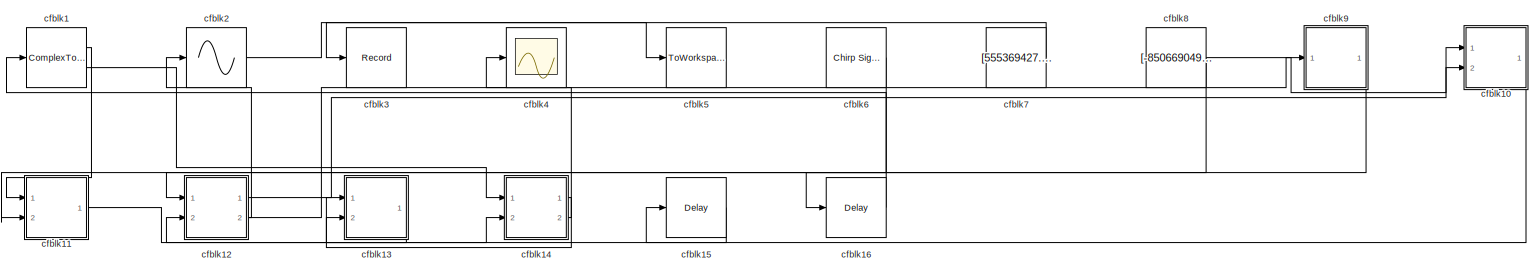
[diagram: root canvas - part 1/1, most of the canvas]
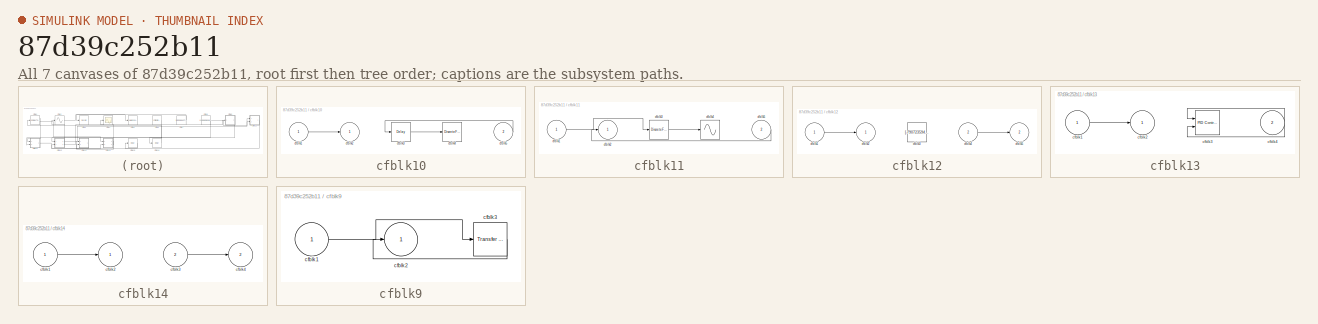
[diagram: thumbnail index - all 7 canvases of the model, root first then tree order]
MODEL slx_87d39c252b11
KIND model
CONFIG AbsTol = auto
CONFIG EnableMultiTasking = off
CONFIG FixedStep = auto
CONFIG MaxStep = auto
CONFIG MinStep = auto
CONFIG RelTol = 1e-3
CONFIG SampleTimeConstraint = Unconstrained
CONFIG SolverName = VariableStepAuto
CONFIG StartTime = 0.0
CONFIG StopTime = 10.0
BLOCK [ComplexToMagnitudeAngle] cfblk1
  Ports = [1, 2]
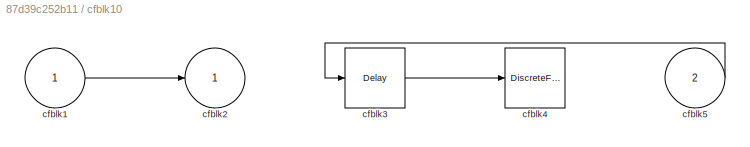
BLOCK [SubSystem] cfblk10
  Ports = [2, 1]
  RequestExecContextInheritance = off
BLOCK [Inport] cfblk10/cfblk1
BLOCK [Outport] cfblk10/cfblk2
BLOCK [Delay] cfblk10/cfblk3
  InputPortMap = u0
  Ports = [1, 1]
  SampleTime = 1
BLOCK [DiscreteFir] cfblk10/cfblk4
  InputPortMap = u0
  OutputPortMap = o0
  Ports = [1, 1]
  SampleTime = 1
BLOCK [Inport] cfblk10/cfblk5
  Port = 2
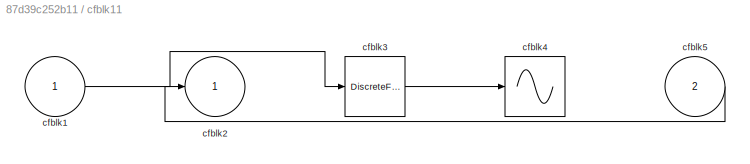
BLOCK [SubSystem] cfblk11
  Ports = [2, 1]
  RequestExecContextInheritance = off
BLOCK [Inport] cfblk11/cfblk1
BLOCK [Outport] cfblk11/cfblk2
BLOCK [DiscreteFilter] cfblk11/cfblk3
  InputPortMap = u0
  Ports = [1, 1]
  SampleTime = 1
BLOCK [Sin] cfblk11/cfblk4
  Ports = [1, 1]
  SampleTime = 0
  TimeSource = Use external signal
BLOCK [Inport] cfblk11/cfblk5
  Port = 2
BLOCK [SubSystem] cfblk12
  Ports = [2, 2]
  RequestExecContextInheritance = off
BLOCK [Inport] cfblk12/cfblk1
BLOCK [Outport] cfblk12/cfblk2
BLOCK [Constant] cfblk12/cfblk3
  SampleTime = 1
  Value = [-790723594.095877]
BLOCK [Inport] cfblk12/cfblk4
  Port = 2
BLOCK [Outport] cfblk12/cfblk5
  Port = 2
BLOCK [SubSystem] cfblk13
  Ports = [2, 1]
  RequestExecContextInheritance = off
BLOCK [Inport] cfblk13/cfblk1
BLOCK [Outport] cfblk13/cfblk2
BLOCK [Reference] cfblk13/cfblk3  REF=slpidlib/PID Controller (2DOF)
  Ports = [2, 1]
  SourceBlock = slpidlib/PID Controller (2DOF)
  SourceProductBaseCode = SL
  SourceType = PID 2dof
BLOCK [Inport] cfblk13/cfblk4
  Port = 2
BLOCK [SubSystem] cfblk14
  Ports = [2, 2]
  RequestExecContextInheritance = off
BLOCK [Inport] cfblk14/cfblk1
BLOCK [Outport] cfblk14/cfblk2
BLOCK [Inport] cfblk14/cfblk3
  Port = 2
BLOCK [Outport] cfblk14/cfblk4
  Port = 2
BLOCK [Delay] cfblk15
  InputPortMap = u0
  Ports = [1, 1]
  SampleTime = 1
BLOCK [Delay] cfblk16
  InputPortMap = u0
  Ports = [1, 1]
  SampleTime = 1
BLOCK [Sin] cfblk2
  Ports = [1, 1]
  SampleTime = 0
  TimeSource = Use external signal
BLOCK [Record] cfblk3
  FileSettingsInternal = {"entries":[{"content":{"excelSettings":{"content":{},"type":"Streamout.ExcelSettings"}},"type":"Streamout.FileSettingStorage","uuid":"7d214d7e-f025-4f1a-b50d-f179f1c1fb35"}],"packageUris":["http://schema.mathworks.com/mf0/streamout_blocks/R2020a"],"version":"1.0"}
  Ports = [1]
  SignalsInternal = {"entries":[{"content":{"signals":[{"content":{"blockPath":["sampleModel230/cfblk3"],"channel":[],"dimensions":[1],"domain":"sampleModel230/cfblk3","lineColor":"#fe330a","plots":[1],"port":1,"sid":[""],"signalID":8988,"signalName":"cfblk7"},"type":"RecordBlkView.Signal","uuid":"8f57e586-6ff4-4d39-bfd1-9b0fbb30b7f1"}]},"type":"RecordBlkView.InputSignals","uuid":"cee28143-0007-4743-95e7-731a7918fb9e...<+94ch>
  VisualizationBindings = {"sparklinesplugin":{"info":[{"bindingParametersList":[],"subplotID":1}]}}
BLOCK [Scope] cfblk4
  Floating = off
  NumInputPorts = 1
  Ports = [1]
BLOCK [ToWorkspace] cfblk5
  FixptAsFi = on
  MaxDataPoints = inf
  Ports = [1]
  SampleTime = -1
  SaveFormat = Timeseries
  VariableName = nsvpnoa
BLOCK [Reference] cfblk6  REF=simulink/Sources/Chirp Signal
  Ports = [0, 1]
  SourceBlock = simulink/Sources/Chirp Signal
  SourceProductBaseCode = SL
  SourceType = chirp
BLOCK [Constant] cfblk7
  SampleTime = 1
  Value = [555369427.302273]
BLOCK [Constant] cfblk8
  SampleTime = 1
  Value = [-850669049.008107]
BLOCK [SubSystem] cfblk9
  Ports = [1, 1]
  RequestExecContextInheritance = off
BLOCK [Inport] cfblk9/cfblk1
BLOCK [Outport] cfblk9/cfblk2
BLOCK [Reference] cfblk9/cfblk3  REF=simulink/Discrete/Transfer Fcn
Lead or Lag
  Ports = [1, 1]
  SourceBlock = simulink/Discrete/Transfer Fcn\nLead or Lag
  SourceProductBaseCode = SL
  SourceType = Lead or Lag Compensator
LINE cfblk10/cfblk1:1 -> cfblk10/cfblk2:1
LINE cfblk10/cfblk3:1 -> cfblk10/cfblk4:1
LINE cfblk10/cfblk5:1 -> cfblk10/cfblk3:1
LINE cfblk10:1 -> cfblk15:1
LINE cfblk11/cfblk1:1 -> cfblk11/cfblk3:1
LINE cfblk11/cfblk3:1 -> cfblk11/cfblk4:1
LINE cfblk11/cfblk5:1 -> cfblk11/cfblk2:1
LINE cfblk11:1 -> cfblk14:2
LINE cfblk12/cfblk1:1 -> cfblk12/cfblk2:1
LINE cfblk12/cfblk4:1 -> cfblk12/cfblk5:1
LINE cfblk12:1 -> cfblk10:1
NET cfblk12:2 -> cfblk2:1, cfblk9:1
LINE cfblk13/cfblk1:1 -> cfblk13/cfblk2:1
NET cfblk13/cfblk4:1 -> cfblk13/cfblk3:1, cfblk13/cfblk3:2
LINE cfblk13:1 -> cfblk12:2
LINE cfblk14/cfblk1:1 -> cfblk14/cfblk2:1
LINE cfblk14/cfblk3:1 -> cfblk14/cfblk4:1
LINE cfblk14:1 -> cfblk13:1
LINE cfblk14:2 -> cfblk4:1
LINE cfblk15:1 -> cfblk13:2
LINE cfblk16:1 -> cfblk1:1
LINE cfblk1:1 -> cfblk11:1
LINE cfblk1:2 -> cfblk14:1
LINE cfblk2:1 -> cfblk5:1
LINE cfblk6:1 -> cfblk11:2
LINE cfblk7:1 -> cfblk3:1
NET cfblk8:1 -> cfblk10:2, cfblk12:1
LINE cfblk9/cfblk1:1 -> cfblk9/cfblk3:1
LINE cfblk9/cfblk3:1 -> cfblk9/cfblk2:1
LINE cfblk9:1 -> cfblk16:1
note: NET lines group one-source signal fan-out (src -> all destinations, sorted); 1:1 wires keep LINE
